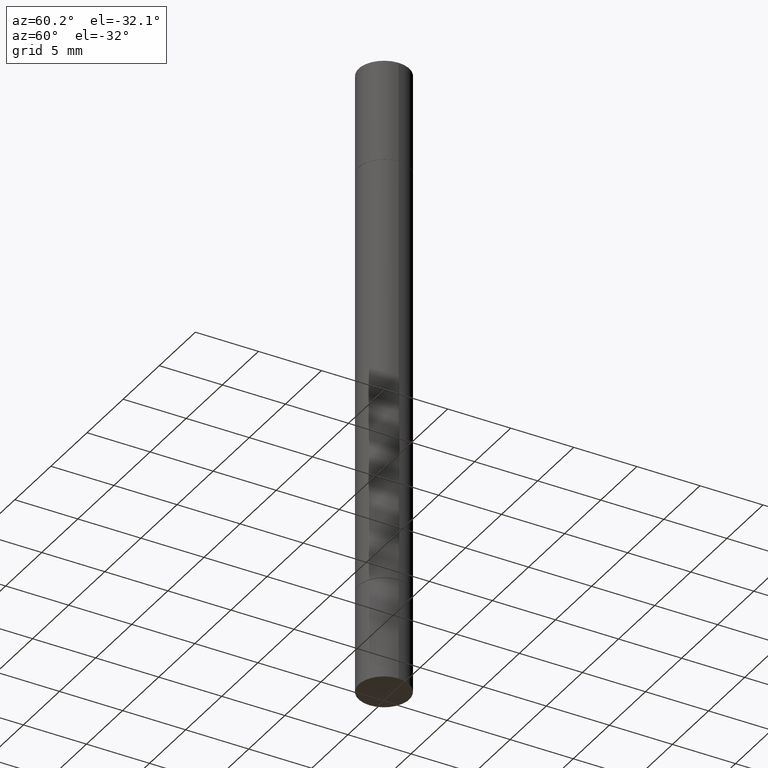
[diagram: clean part render]
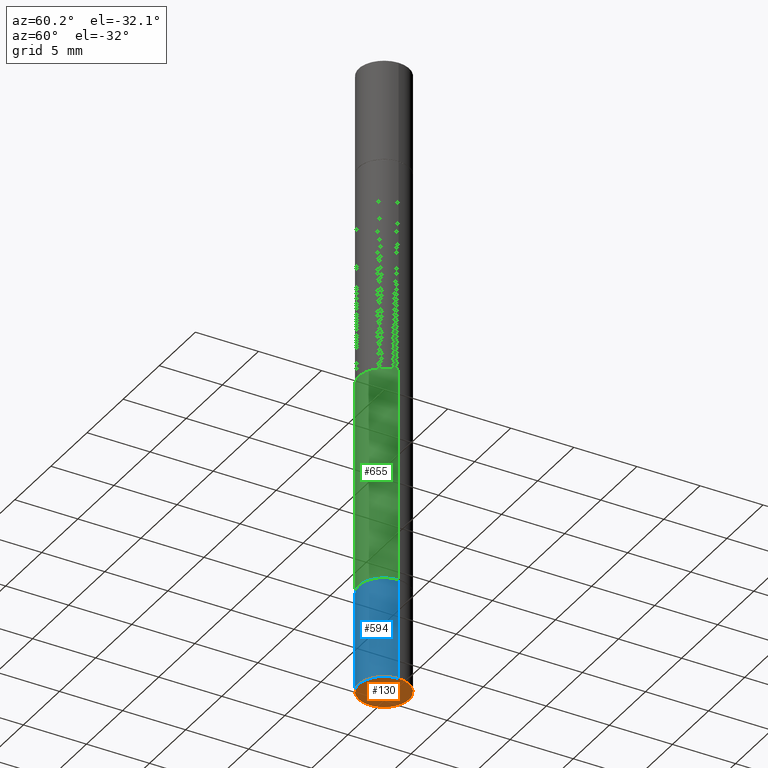
[diagram: same view with three faces highlighted in distinct colors, each labeled with its STEP entity id]
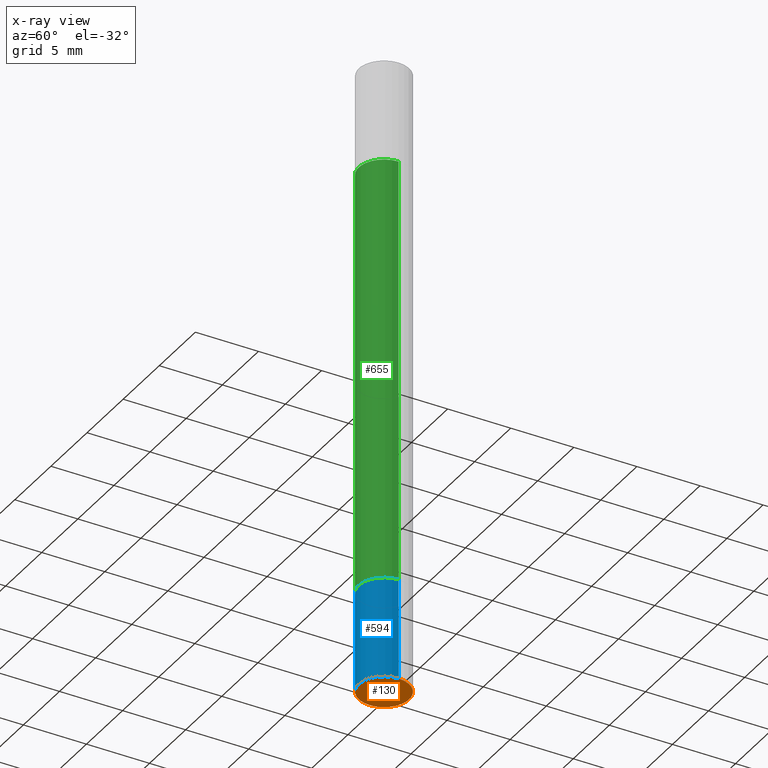
[diagram: x-ray of the same camera — body ghosted, the three highlighted faces saturated]
A machine part, auxiliary view with three faces highlighted in distinct colors.
The next image is the same camera in x-ray (body ghosted, the three faces saturated) — at least one of them is partly hidden behind the body in this view.
Their STEP definitions:

[orange] entity #130 — the highlighted planar face has unit normal (0, -0, -1).
#4 = EDGE_LOOP ( 'NONE', ( #432, #157 ) ) ;
#81 = AXIS2_PLACEMENT_3D ( 'NONE', #473, #205, #362 ) ;
#94 = CARTESIAN_POINT ( 'NONE',  ( -0.07875000000000000056, -5.763520300233858771E-15, -1.968500000000000139 ) ) ;
#130 = ADVANCED_FACE ( 'NONE', ( #575 ), #260, .T. ) ;
#157 = ORIENTED_EDGE ( 'NONE', *, *, #676, .F. ) ;
#184 = CARTESIAN_POINT ( 'NONE',  ( 0.07875000000000000056, -7.422889326380525053E-15, -1.968500000000000139 ) ) ;
#205 = DIRECTION ( 'NONE',  ( 2.438088387897960049E-29, -3.491481338843145188E-15, -1.000000000000000000 ) ) ;
#260 = PLANE ( 'NONE',  #81 ) ;
#285 = CARTESIAN_POINT ( 'NONE',  ( 4.813905344975441835E-29, -6.872981015512731707E-15, -1.968500000000000139 ) ) ;
#362 = DIRECTION ( 'NONE',  ( -1.000000000000000000, 6.982962677686265922E-15, -4.876176775795935793E-29 ) ) ;
#383 = DIRECTION ( 'NONE',  ( -2.445468806185136597E-29, 3.491481338843145583E-15, 1.000000000000000000 ) ) ;
#400 = CIRCLE ( 'NONE', #411, 0.07875000000000000056 ) ;
#407 = VERTEX_POINT ( 'NONE', #94 ) ;
#411 = AXIS2_PLACEMENT_3D ( 'NONE', #285, #383, #497 ) ;
#415 = CARTESIAN_POINT ( 'NONE',  ( 4.813905344975441835E-29, -6.872981015512731707E-15, -1.968500000000000139 ) ) ;
#432 = ORIENTED_EDGE ( 'NONE', *, *, #549, .F. ) ;
#451 = AXIS2_PLACEMENT_3D ( 'NONE', #415, #621, #571 ) ;
#472 = VERTEX_POINT ( 'NONE', #184 ) ;
#473 = CARTESIAN_POINT ( 'NONE',  ( 5.499083108678415648E-16, 0.07874999999999311717, -1.968500000000000361 ) ) ;
#497 = DIRECTION ( 'NONE',  ( 1.000000000000000000, -6.982962677686261977E-15, 0.000000000000000000 ) ) ;
#536 = CIRCLE ( 'NONE', #451, 0.07875000000000000056 ) ;
#549 = EDGE_CURVE ( 'NONE', #472, #407, #536, .T. ) ;
#571 = DIRECTION ( 'NONE',  ( 1.000000000000000000, -6.982962677686261977E-15, 0.000000000000000000 ) ) ;
#575 = FACE_OUTER_BOUND ( 'NONE', #4, .T. ) ;
#621 = DIRECTION ( 'NONE',  ( -2.445468806185136597E-29, 3.491481338843145583E-15, 1.000000000000000000 ) ) ;
#676 = EDGE_CURVE ( 'NONE', #407, #472, #400, .T. ) ;

[blue] entity #594 — the highlighted cylindrical surface (edge-blend (fillet) strip) has radius 2.0002 mm, axis along (-0, 0, 1).
#7 = ORIENTED_EDGE ( 'NONE', *, *, #676, .T. ) ;
#15 = VERTEX_POINT ( 'NONE', #317 ) ;
#42 = CARTESIAN_POINT ( 'NONE',  ( -0.07875000000000000056, 5.595524044110789003E-16, -3.873661383575737792E-30 ) ) ;
#43 = AXIS2_PLACEMENT_3D ( 'NONE', #641, #447, #78 ) ;
#78 = DIRECTION ( 'NONE',  ( 1.000000000000000000, -6.982962677686261977E-15, 0.000000000000000000 ) ) ;
#85 = EDGE_CURVE ( 'NONE', #15, #349, #327, .T. ) ;
#94 = CARTESIAN_POINT ( 'NONE',  ( -0.07875000000000000056, -5.763520300233858771E-15, -1.968500000000000139 ) ) ;
#98 = FACE_OUTER_BOUND ( 'NONE', #336, .T. ) ;
#99 = LINE ( 'NONE', #42, #234 ) ;
#102 = ORIENTED_EDGE ( 'NONE', *, *, #454, .F. ) ;
#142 = VECTOR ( 'NONE', #610, 39.37007874015748143 ) ;
#153 = AXIS2_PLACEMENT_3D ( 'NONE', #547, #439, #287 ) ;
#184 = CARTESIAN_POINT ( 'NONE',  ( 0.07875000000000000056, -7.422889326380525053E-15, -1.968500000000000139 ) ) ;
#234 = VECTOR ( 'NONE', #457, 39.37007874015748143 ) ;
#284 = CYLINDRICAL_SURFACE ( 'NONE', #153, 0.07875000000000000056 ) ;
#285 = CARTESIAN_POINT ( 'NONE',  ( 4.813905344975441835E-29, -6.872981015512731707E-15, -1.968500000000000139 ) ) ;
#287 = DIRECTION ( 'NONE',  ( 1.000000000000000000, -6.982962677686265922E-15, 4.876176775795935232E-29 ) ) ;
#317 = CARTESIAN_POINT ( 'NONE',  ( -0.07875000000000000056, -5.763520300233858771E-15, -1.653499999999999970 ) ) ;
#327 = CIRCLE ( 'NONE', #43, 0.07875000000000000056 ) ;
#332 = LINE ( 'NONE', #510, #142 ) ;
#336 = EDGE_LOOP ( 'NONE', ( #102, #7, #643, #670 ) ) ;
#340 = EDGE_CURVE ( 'NONE', #472, #349, #332, .T. ) ;
#343 = CARTESIAN_POINT ( 'NONE',  ( 0.07875000000000000056, -6.323072704644934417E-15, -1.653499999999999970 ) ) ;
#349 = VERTEX_POINT ( 'NONE', #343 ) ;
#383 = DIRECTION ( 'NONE',  ( -2.445468806185136597E-29, 3.491481338843145583E-15, 1.000000000000000000 ) ) ;
#400 = CIRCLE ( 'NONE', #411, 0.07875000000000000056 ) ;
#407 = VERTEX_POINT ( 'NONE', #94 ) ;
#411 = AXIS2_PLACEMENT_3D ( 'NONE', #285, #383, #497 ) ;
#439 = DIRECTION ( 'NONE',  ( -2.445468806185136597E-29, 3.491481338843145583E-15, 1.000000000000000000 ) ) ;
#447 = DIRECTION ( 'NONE',  ( -2.445468806185136597E-29, 3.491481338843145583E-15, 1.000000000000000000 ) ) ;
#454 = EDGE_CURVE ( 'NONE', #407, #15, #99, .T. ) ;
#457 = DIRECTION ( 'NONE',  ( -2.445468806185136877E-29, 3.491481338843145188E-15, 1.000000000000000000 ) ) ;
#472 = VERTEX_POINT ( 'NONE', #184 ) ;
#497 = DIRECTION ( 'NONE',  ( 1.000000000000000000, -6.982962677686261977E-15, 0.000000000000000000 ) ) ;
#510 = CARTESIAN_POINT ( 'NONE',  ( 0.07875000000000000056, -5.499083108677934443E-16, 3.839989210939299016E-30 ) ) ;
#547 = CARTESIAN_POINT ( 'NONE',  ( 0.000000000000000000, 0.000000000000000000, 0.000000000000000000 ) ) ;
#594 = ADVANCED_FACE ( 'NONE', ( #98 ), #284, .T. ) ;
#610 = DIRECTION ( 'NONE',  ( -2.445468806185136877E-29, 3.491481338843145188E-15, 1.000000000000000000 ) ) ;
#641 = CARTESIAN_POINT ( 'NONE',  ( 4.043582671027123201E-29, -5.773164393777141072E-15, -1.653499999999999970 ) ) ;
#643 = ORIENTED_EDGE ( 'NONE', *, *, #340, .T. ) ;
#670 = ORIENTED_EDGE ( 'NONE', *, *, #85, .F. ) ;
#676 = EDGE_CURVE ( 'NONE', #407, #472, #400, .T. ) ;

[green] entity #655 — the highlighted cylindrical surface (edge-blend (fillet) strip) has radius 2.0002 mm, axis along (-0, -0, -1).
#3 = VERTEX_POINT ( 'NONE', #266 ) ;
#24 = DIRECTION ( 'NONE',  ( 1.000000000000000000, -6.982962677686264344E-15, 0.000000000000000000 ) ) ;
#40 = LINE ( 'NONE', #333, #235 ) ;
#41 = ORIENTED_EDGE ( 'NONE', *, *, #323, .T. ) ;
#47 = DIRECTION ( 'NONE',  ( -2.445468806185136877E-29, -3.492890411551753071E-15, -1.000000000000000000 ) ) ;
#48 = ORIENTED_EDGE ( 'NONE', *, *, #449, .T. ) ;
#53 = CARTESIAN_POINT ( 'NONE',  ( 4.041137202220937598E-29, -1.102366490236907793E-15, -0.3159999999999998366 ) ) ;
#55 = AXIS2_PLACEMENT_3D ( 'NONE', #53, #252, #198 ) ;
#72 = EDGE_CURVE ( 'NONE', #258, #453, #645, .T. ) ;
#75 = DIRECTION ( 'NONE',  ( 1.000000000000000000, -6.982962677686273021E-15, 0.000000000000000000 ) ) ;
#76 = CARTESIAN_POINT ( 'NONE',  ( 4.041137202220937598E-29, -5.769672912438298064E-15, -1.652499999999999858 ) ) ;
#80 = CYLINDRICAL_SURFACE ( 'NONE', #338, 0.07874999999999987566 ) ;
#87 = CARTESIAN_POINT ( 'NONE',  ( 0.07874999999999997280, -6.319581223306091410E-15, -1.652499999999999858 ) ) ;
#137 = CARTESIAN_POINT ( 'NONE',  ( -0.07874999999999997280, -5.621022729123983254E-16, -0.3159999999999998366 ) ) ;
#170 = ORIENTED_EDGE ( 'NONE', *, *, #72, .F. ) ;
#177 = DIRECTION ( 'NONE',  ( -2.445468806185136597E-29, 3.491481338843145583E-15, 1.000000000000000000 ) ) ;
#198 = DIRECTION ( 'NONE',  ( 1.000000000000000000, -6.982962677686267499E-15, 0.000000000000000000 ) ) ;
#220 = FACE_OUTER_BOUND ( 'NONE', #314, .T. ) ;
#235 = VECTOR ( 'NONE', #498, 39.37007874015748143 ) ;
#252 = DIRECTION ( 'NONE',  ( 2.445468806185136597E-29, 3.492890411551752677E-15, 1.000000000000000000 ) ) ;
#258 = VERTEX_POINT ( 'NONE', #137 ) ;
#266 = CARTESIAN_POINT ( 'NONE',  ( -0.07874999999999997280, -2.896226290431854020E-15, -1.652499999999999858 ) ) ;
#314 = EDGE_LOOP ( 'NONE', ( #170, #48, #41, #611 ) ) ;
#323 = EDGE_CURVE ( 'NONE', #3, #394, #601, .T. ) ;
#333 = CARTESIAN_POINT ( 'NONE',  ( -0.07874999999999987566, -6.334103678001671209E-15, -1.968499999999999694 ) ) ;
#338 = AXIS2_PLACEMENT_3D ( 'NONE', #494, #596, #75 ) ;
#351 = EDGE_CURVE ( 'NONE', #453, #394, #460, .T. ) ;
#394 = VERTEX_POINT ( 'NONE', #87 ) ;
#404 = CARTESIAN_POINT ( 'NONE',  ( 0.07874999999999987566, -7.424276206193971655E-15, -1.968499999999999694 ) ) ;
#449 = EDGE_CURVE ( 'NONE', #258, #3, #40, .T. ) ;
#450 = VECTOR ( 'NONE', #47, 39.37007874015748143 ) ;
#453 = VERTEX_POINT ( 'NONE', #606 ) ;
#460 = LINE ( 'NONE', #404, #450 ) ;
#470 = AXIS2_PLACEMENT_3D ( 'NONE', #76, #177, #24 ) ;
#494 = CARTESIAN_POINT ( 'NONE',  ( 0.000000000000000000, -6.874367895326177521E-15, -1.968499999999999694 ) ) ;
#498 = DIRECTION ( 'NONE',  ( -2.445468806185136877E-29, -3.492890411551753071E-15, -1.000000000000000000 ) ) ;
#596 = DIRECTION ( 'NONE',  ( -2.445468806185136597E-29, -3.492890411551752677E-15, -1.000000000000000000 ) ) ;
#601 = CIRCLE ( 'NONE', #470, 0.07874999999999997280 ) ;
#606 = CARTESIAN_POINT ( 'NONE',  ( 0.07874999999999997280, -1.652274801104699758E-15, -0.3159999999999998366 ) ) ;
#611 = ORIENTED_EDGE ( 'NONE', *, *, #351, .F. ) ;
#645 = CIRCLE ( 'NONE', #55, 0.07874999999999997280 ) ;
#655 = ADVANCED_FACE ( 'NONE', ( #220 ), #80, .T. ) ;